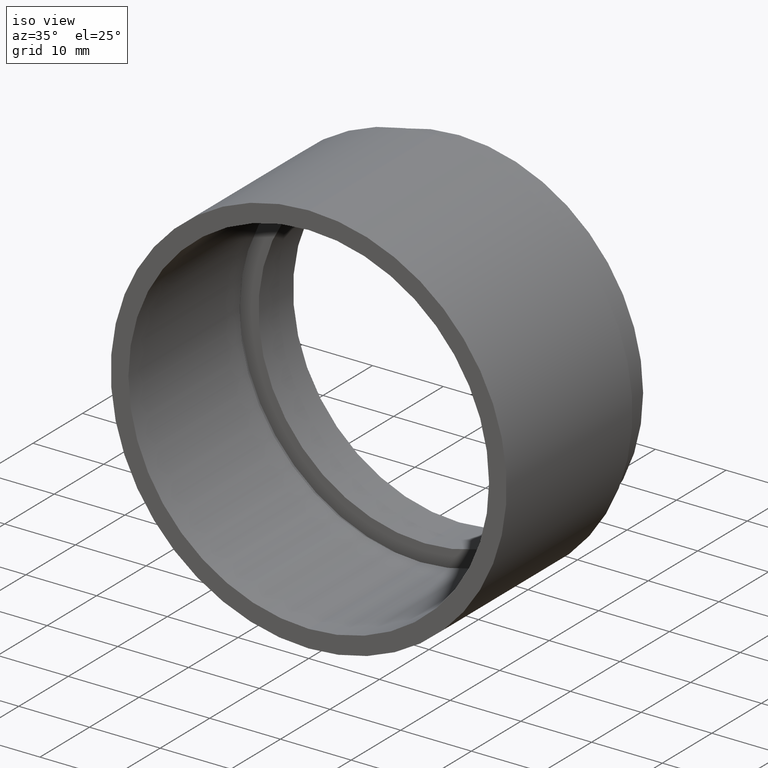
[diagram: clean part render]
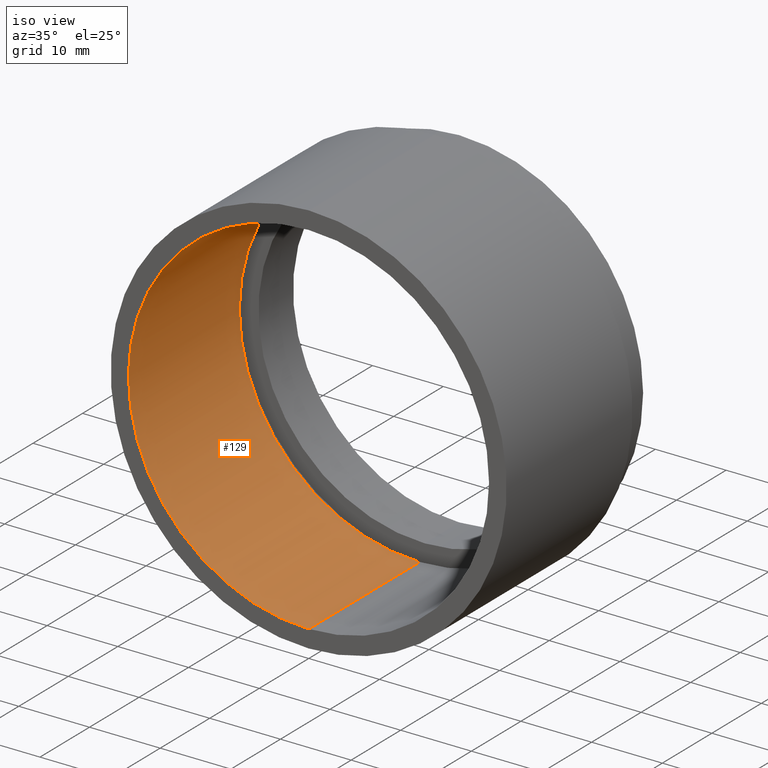
[diagram: same view with one face highlighted and labeled with its STEP entity id]
A machine part, iso view. The second image highlights one B-rep face of the part: STEP entity #129.
In plain terms, the highlighted cylindrical surface (partial cylindrical patch) has radius 25.5 mm, axis along (-0, 1, -0).
Its self-contained STEP definition (entity closure, byte-faithful):
#47 = CARTESIAN_POINT ( 'NONE',  ( 3.122849337825753000E-015, 22.39999999999997700, -25.50000000000001800 ) ) ;
#54 = VERTEX_POINT ( 'NONE', #47 ) ;
#67 = CARTESIAN_POINT ( 'NONE',  ( 3.122849337825753000E-015, -2.775557561562891400E-014, -25.50000000000001800 ) ) ;
#73 = CARTESIAN_POINT ( 'NONE',  ( 0.0000000000000000000, 22.39999999999997700, 25.50000000000001800 ) ) ;
#76 = VERTEX_POINT ( 'NONE', #67 ) ;
#77 = CARTESIAN_POINT ( 'NONE',  ( 0.0000000000000000000, 22.39999999999997700, 0.0000000000000000000 ) ) ;
#79 = CYLINDRICAL_SURFACE ( 'NONE', #150, 25.50000000000001800 ) ;
#89 = LINE ( 'NONE', #160, #445 ) ;
#93 = ORIENTED_EDGE ( 'NONE', *, *, #566, .F. ) ;
#97 = EDGE_CURVE ( 'NONE', #76, #54, #280, .T. ) ;
#98 = FACE_OUTER_BOUND ( 'NONE', #275, .T. ) ;
#129 = ADVANCED_FACE ( 'NONE', ( #98 ), #79, .F. ) ;
#146 = EDGE_CURVE ( 'NONE', #54, #609, #393, .T. ) ;
#150 = AXIS2_PLACEMENT_3D ( 'NONE', #359, #448, #260 ) ;
#160 = CARTESIAN_POINT ( 'NONE',  ( 0.0000000000000000000, 161.3761669434274500, 25.50000000000001800 ) ) ;
#210 = ORIENTED_EDGE ( 'NONE', *, *, #146, .T. ) ;
#211 = DIRECTION ( 'NONE',  ( -0.0000000000000000000, 1.000000000000000000, -0.0000000000000000000 ) ) ;
#260 = DIRECTION ( 'NONE',  ( 0.0000000000000000000, 0.0000000000000000000, 1.000000000000000000 ) ) ;
#271 = DIRECTION ( 'NONE',  ( -0.0000000000000000000, 1.000000000000000000, -0.0000000000000000000 ) ) ;
#275 = EDGE_LOOP ( 'NONE', ( #505, #292, #210, #93 ) ) ;
#279 = EDGE_CURVE ( 'NONE', #76, #391, #411, .T. ) ;
#280 = LINE ( 'NONE', #363, #511 ) ;
#292 = ORIENTED_EDGE ( 'NONE', *, *, #97, .T. ) ;
#349 = DIRECTION ( 'NONE',  ( -0.0000000000000000000, 1.000000000000000000, -0.0000000000000000000 ) ) ;
#358 = CARTESIAN_POINT ( 'NONE',  ( 0.0000000000000000000, -2.775557561562891400E-014, 25.50000000000001800 ) ) ;
#359 = CARTESIAN_POINT ( 'NONE',  ( 0.0000000000000000000, 161.3761669434274500, 0.0000000000000000000 ) ) ;
#363 = CARTESIAN_POINT ( 'NONE',  ( 3.122849337825753000E-015, 161.3761669434274500, -25.50000000000001800 ) ) ;
#391 = VERTEX_POINT ( 'NONE', #358 ) ;
#393 = CIRCLE ( 'NONE', #615, 25.50000000000001800 ) ;
#411 = CIRCLE ( 'NONE', #439, 25.50000000000001800 ) ;
#439 = AXIS2_PLACEMENT_3D ( 'NONE', #528, #349, #484 ) ;
#445 = VECTOR ( 'NONE', #271, 1000.000000000000000 ) ;
#448 = DIRECTION ( 'NONE',  ( -0.0000000000000000000, 1.000000000000000000, -0.0000000000000000000 ) ) ;
#465 = DIRECTION ( 'NONE',  ( 0.0000000000000000000, 0.0000000000000000000, 1.000000000000000000 ) ) ;
#484 = DIRECTION ( 'NONE',  ( 0.0000000000000000000, 0.0000000000000000000, 1.000000000000000000 ) ) ;
#505 = ORIENTED_EDGE ( 'NONE', *, *, #279, .F. ) ;
#507 = DIRECTION ( 'NONE',  ( -0.0000000000000000000, 1.000000000000000000, -0.0000000000000000000 ) ) ;
#511 = VECTOR ( 'NONE', #211, 1000.000000000000000 ) ;
#528 = CARTESIAN_POINT ( 'NONE',  ( 0.0000000000000000000, -2.775557561562891400E-014, 0.0000000000000000000 ) ) ;
#566 = EDGE_CURVE ( 'NONE', #391, #609, #89, .T. ) ;
#609 = VERTEX_POINT ( 'NONE', #73 ) ;
#615 = AXIS2_PLACEMENT_3D ( 'NONE', #77, #507, #465 ) ;